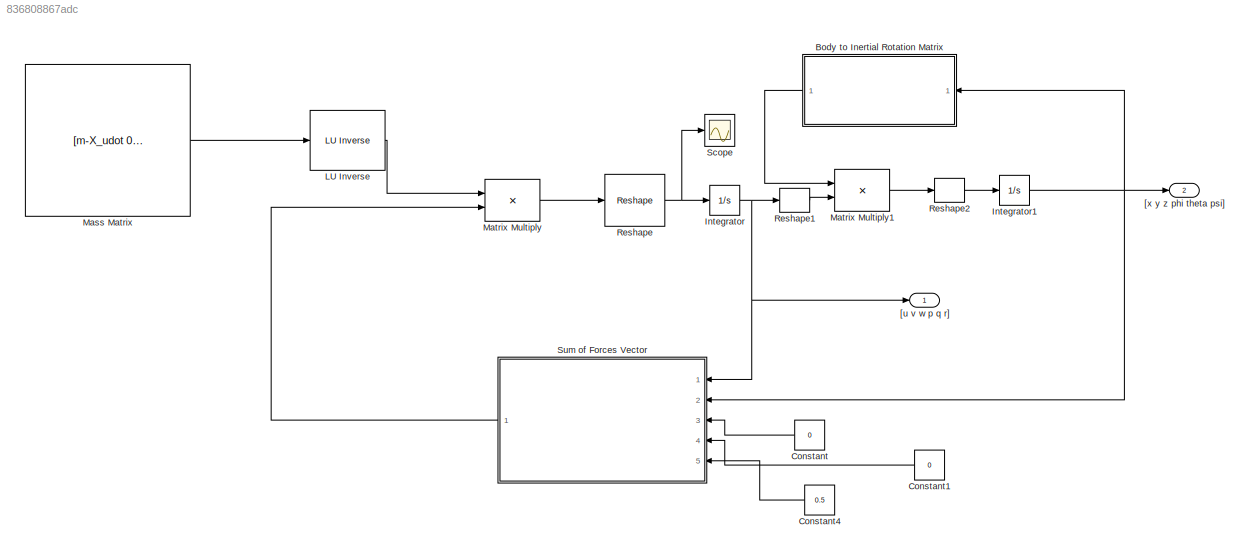
MODEL slx_836808867adc
KIND model
CONFIG AbsTol = auto
CONFIG EnableMultiTasking = off
CONFIG FixedStep = 0.01
CONFIG MaxStep = auto
CONFIG MinStep = auto
CONFIG RelTol = 1e-3
CONFIG SampleTimeConstraint = Unconstrained
CONFIG Solver = FixedStepAuto
CONFIG SolverName = FixedStepAuto
CONFIG StartTime = 0.0
CONFIG StopTime = 10.0
BLOCK [Reference]  LU Inverse  REF=dspinverses/ LU Inverse
  Ports = [1, 1]
  SourceBlock = dspinverses/ LU Inverse
  SourceType = LU Inverse
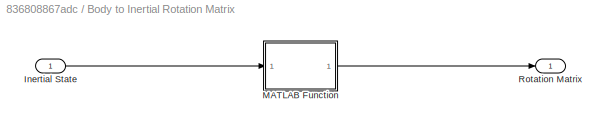
BLOCK [SubSystem] Body to Inertial Rotation Matrix
  Ports = [1, 1]
  RequestExecContextInheritance = off
  Variant = off
BLOCK [Inport] Body to Inertial Rotation Matrix/Inertial State
  IconDisplay = Port number
  VarSizeSig = No
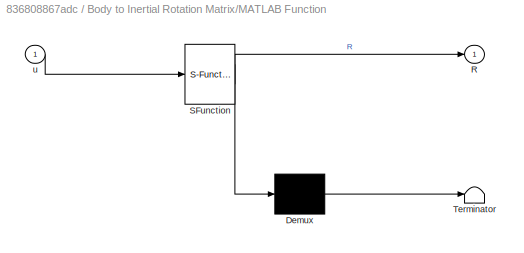
BLOCK [SubSystem] Body to Inertial Rotation Matrix/MATLAB Function
  ErrorFcn = Stateflow.Translate.translate
  PermitHierarchicalResolution = ExplicitOnly
  Ports = [1, 1]
  RequestExecContextInheritance = off
  SFBlockType = MATLAB Function
  TreatAsAtomicUnit = on
  Variant = off
BLOCK [Demux] Body to Inertial Rotation Matrix/MATLAB Function/ Demux 
  Outputs = 1
  Ports = [1, 1]
BLOCK [S-Function] Body to Inertial Rotation Matrix/MATLAB Function/ SFunction 
  EnableBusSupport = on
  FunctionName = sf_sfun
  PortCounts = [1 2]
  Ports = [1, 2]
  SFcnIsStateOwnerBlock = off
  SFunctionDeploymentMode = off
  Tag = Stateflow S-Function iver_model 2
BLOCK [Terminator] Body to Inertial Rotation Matrix/MATLAB Function/ Terminator 
BLOCK [Outport] Body to Inertial Rotation Matrix/MATLAB Function/R
  IconDisplay = Port number
BLOCK [Inport] Body to Inertial Rotation Matrix/MATLAB Function/u
  IconDisplay = Port number
BLOCK [Outport] Body to Inertial Rotation Matrix/Rotation Matrix
  IconDisplay = Port number
  PortDimensions = [6,6]
BLOCK [Constant] Constant
  Value = 0
BLOCK [Constant] Constant1
  Value = 0
BLOCK [Constant] Constant4
  Value = 0.5
BLOCK [Integrator] Integrator
  InitialCondition = [0 0 0 0 0 0]'
  Ports = [1, 1]
BLOCK [Integrator] Integrator1
  InitialCondition = [0 0 0 0 0 0]'
  Ports = [1, 1]
BLOCK [Constant] Mass Matrix 
  Value = [m-X_udot 0 0 0 m*zg 0; 0 m-Y_vdot 0 -m*zg 0 m*xg-Y_rdot; 0 0 m-Z_wdot 0 -m*xg-Z_qdot 0; 0 -m*zg 0 Ix-K_pdot 0 0; m*zg 0 -m*xg-M_wdot 0 Iy-M_qdot 0; 0 m*xg-N_vdot 0 0 0 Iz-N_rdot]
  VectorParams1D = off
BLOCK [Product] Matrix Multiply
  InputSameDT = off
  Multiplication = Matrix(*)
  OutDataTypeStr = Inherit: Inherit via internal rule
  Ports = [2, 1]
  RndMeth = Floor
  SaturateOnIntegerOverflow = off
BLOCK [Product] Matrix Multiply1
  InputSameDT = off
  Multiplication = Matrix(*)
  OutDataTypeStr = Inherit: Inherit via internal rule
  Ports = [2, 1]
  RndMeth = Floor
  SaturateOnIntegerOverflow = off
BLOCK [Reshape] Reshape
  OutputDimensions = 3
  Ports = [1, 1]
BLOCK [Reshape] Reshape1
  OutputDimensions = [1,6]
  Ports = [1, 1]
BLOCK [Reshape] Reshape2
  OutputDimensions = [6,1]
  Ports = [1, 1]
BLOCK [Scope] Scope
  NumInputPorts = 1
  Ports = [1]
  ScopeSpecificationString = Simulink.scopes.TimeScopeBlockCfg('CurrentConfiguration', extmgr.ConfigurationSet(extmgr.Configuration('Core','General UI',true),extmgr.Configuration('Core','Source UI',true),extmgr.Configuration('Sources','WiredSimulink',true),extmgr.Configuration('Visuals','Time Domain',true,'SerializedDisplays',{struct('MinYLimReal','-60845821219052845961578341929012387480759046302688457549254414617955403141011...<+2204ch>
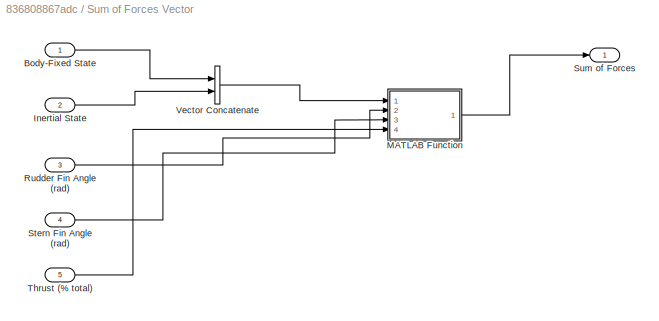
BLOCK [SubSystem] Sum of Forces Vector
  Ports = [5, 1]
  RequestExecContextInheritance = off
  Variant = off
BLOCK [Inport] Sum of Forces Vector/Body-Fixed State
  IconDisplay = Port number
BLOCK [Inport] Sum of Forces Vector/Inertial State
  IconDisplay = Port number
  Port = 2
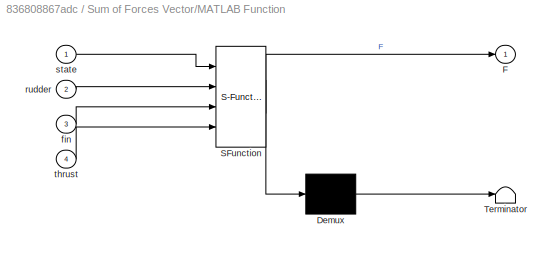
BLOCK [SubSystem] Sum of Forces Vector/MATLAB Function
  ErrorFcn = Stateflow.Translate.translate
  PermitHierarchicalResolution = ExplicitOnly
  Ports = [4, 1]
  RequestExecContextInheritance = off
  SFBlockType = MATLAB Function
  TreatAsAtomicUnit = on
  Variant = off
BLOCK [Demux] Sum of Forces Vector/MATLAB Function/ Demux 
  Outputs = 1
  Ports = [1, 1]
BLOCK [S-Function] Sum of Forces Vector/MATLAB Function/ SFunction 
  EnableBusSupport = on
  FunctionName = sf_sfun
  PortCounts = [4 2]
  Ports = [4, 2]
  SFcnIsStateOwnerBlock = off
  SFunctionDeploymentMode = off
  Tag = Stateflow S-Function iver_model 1
BLOCK [Terminator] Sum of Forces Vector/MATLAB Function/ Terminator 
BLOCK [Outport] Sum of Forces Vector/MATLAB Function/F
  IconDisplay = Port number
BLOCK [Inport] Sum of Forces Vector/MATLAB Function/fin
  IconDisplay = Port number
  Port = 3
BLOCK [Inport] Sum of Forces Vector/MATLAB Function/rudder
  IconDisplay = Port number
  Port = 2
BLOCK [Inport] Sum of Forces Vector/MATLAB Function/state
  IconDisplay = Port number
BLOCK [Inport] Sum of Forces Vector/MATLAB Function/thrust
  IconDisplay = Port number
  Port = 4
BLOCK [Inport] Sum of Forces Vector/Rudder Fin Angle (rad)
  IconDisplay = Port number
  Port = 3
BLOCK [Inport] Sum of Forces Vector/Stern Fin Angle (rad)
  IconDisplay = Port number
  Port = 4
BLOCK [Outport] Sum of Forces Vector/Sum of Forces
  IconDisplay = Port number
BLOCK [Inport] Sum of Forces Vector/Thrust (% total)
  IconDisplay = Port number
  Port = 5
BLOCK [Concatenate] Sum of Forces Vector/Vector Concatenate
  Ports = [2, 1]
BLOCK [Outport] [u v w p q r]
  IconDisplay = Port number
BLOCK [Outport] [x y z phi theta psi]
  IconDisplay = Port number
  Port = 2
LINE  LU Inverse:1 -> Matrix Multiply:1
LINE Body to Inertial Rotation Matrix/Inertial State:1 -> Body to Inertial Rotation Matrix/MATLAB Function:1
LINE Body to Inertial Rotation Matrix/MATLAB Function:1 -> Body to Inertial Rotation Matrix/Rotation Matrix:1
LINE Body to Inertial Rotation Matrix:1 -> Matrix Multiply1:1
LINE Constant1:1 -> Sum of Forces Vector:4
LINE Constant4:1 -> Sum of Forces Vector:5
LINE Constant:1 -> Sum of Forces Vector:3
NET Integrator1:1 -> Body to Inertial Rotation Matrix:1, Sum of Forces Vector:2, [x y z phi theta psi]:1
NET Integrator:1 -> Reshape1:1, Sum of Forces Vector:1, [u v w p q r]:1
LINE Mass Matrix :1 ->  LU Inverse:1
LINE Matrix Multiply1:1 -> Reshape2:1
LINE Matrix Multiply:1 -> Reshape:1
LINE Reshape1:1 -> Matrix Multiply1:2
LINE Reshape2:1 -> Integrator1:1
NET Reshape:1 -> Integrator:1, Scope:1
LINE Sum of Forces Vector/Body-Fixed State:1 -> Sum of Forces Vector/Vector Concatenate:1
LINE Sum of Forces Vector/Inertial State:1 -> Sum of Forces Vector/Vector Concatenate:2
LINE Sum of Forces Vector/MATLAB Function:1 -> Sum of Forces Vector/Sum of Forces:1
LINE Sum of Forces Vector/Rudder Fin Angle (rad):1 -> Sum of Forces Vector/MATLAB Function:2
LINE Sum of Forces Vector/Stern Fin Angle (rad):1 -> Sum of Forces Vector/MATLAB Function:3
LINE Sum of Forces Vector/Thrust (% total):1 -> Sum of Forces Vector/MATLAB Function:4
LINE Sum of Forces Vector/Vector Concatenate:1 -> Sum of Forces Vector/MATLAB Function:1
LINE Sum of Forces Vector:1 -> Matrix Multiply:2
note: NET lines group one-source signal fan-out (src -> all destinations, sorted); 1:1 wires keep LINE
CHART Sum of Forces Vector/MATLAB Function states=1 transitions=1
  STATE_LABEL 'eML_blk_kernel()'
  STATE_LABEL "SCRIPT:\nfunction F = fcn(state, rudder, fin, thrust)\n    \n    %% Constants\n    %disp('Calc Nonlinear Coeffs')\n    %Conversion Factors:\n    i2m = 0.0254; %Conversion factor (inches to meters)\n    lb2N = 4.44822162; %Conversion factor (lbs-force to Newtons)\n    %Water Characteristics:\n    %U = 1.5; %nominal velocity (m/s)\n    U = 1; %2 knots\n    rho = 1.03*10^(3); %seawater density (kg/m^3)\n    %***...<+3608ch>"
CHART Body to Inertial Rotation Matrix/MATLAB Function states=1 transitions=1
  STATE_LABEL 'eML_blk_kernel()'
  STATE_LABEL 'SCRIPT:\nfunction R = fcn(u)\n    % Inputs\n    x = u(1);\n    y = u(2);\n    z = u(3);\n    phi = u(4);\n    theta = u(5);\n    psi = u(6);\n    \n    % transformation\n    cosphi = cos(phi);\n    sinphi = sin(phi);\n    costheta = cos(theta);\n    sintheta = sin(theta);\n    cospsi = cos(psi);\n    sinpsi = sin(psi);\n\n    R = zeros(6,6);\n    R(1,1) = cospsi.*cosphi-costheta.*sinphi.*sinpsi;\n    R(1,2) = sinphi....<+351ch>'
